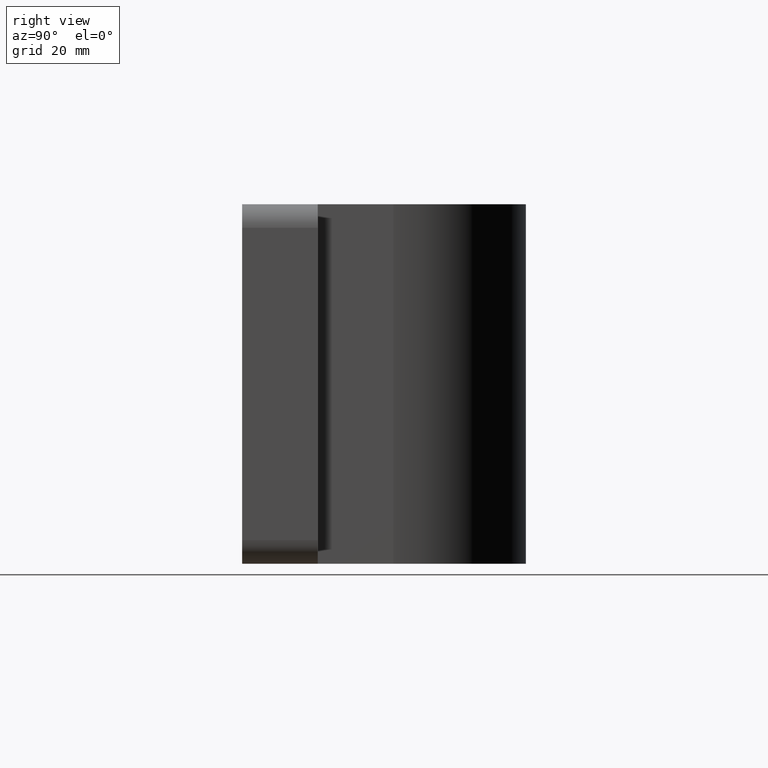
[diagram: clean part render]
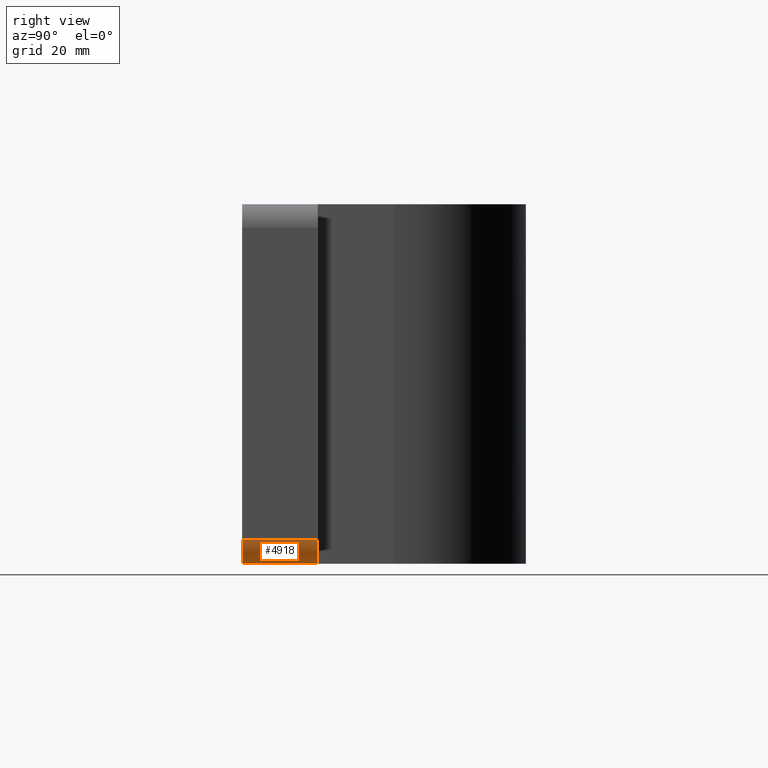
[diagram: same view with one face highlighted and labeled with its STEP entity id]
A machine part, right view. The second image highlights one B-rep face of the part: STEP entity #4918.
In plain terms, the highlighted cylindrical surface (edge-blend (fillet) strip) has radius 5 mm, axis along (0, 1, -0).
Its self-contained STEP definition (entity closure, byte-faithful):
#151 = CIRCLE ( 'NONE', #7488, 5.000000000000000000 ) ;
#208 = CARTESIAN_POINT ( 'NONE',  ( 11.23092376484898700, -18.95986378845479700, -38.00000000000000000 ) ) ;
#250 = VECTOR ( 'NONE', #5026, 1000.000000000000000 ) ;
#303 = ORIENTED_EDGE ( 'NONE', *, *, #7369, .F. ) ;
#498 = DIRECTION ( 'NONE',  ( -0.0000000000000000000, -1.000000000000000000, 0.0000000000000000000 ) ) ;
#541 = CARTESIAN_POINT ( 'NONE',  ( 11.23092376484898700, 13.04013621154520000, -38.00000000000000000 ) ) ;
#703 = LINE ( 'NONE', #4998, #250 ) ;
#754 = DIRECTION ( 'NONE',  ( 0.0000000000000000000, 1.000000000000000000, -0.0000000000000000000 ) ) ;
#1510 = DIRECTION ( 'NONE',  ( -1.000000000000000000, 1.387778780781445700E-015, 1.387778780781445700E-015 ) ) ;
#2048 = DIRECTION ( 'NONE',  ( -1.291895883200182400E-015, -1.000000000000000000, 0.0000000000000000000 ) ) ;
#2191 = EDGE_CURVE ( 'NONE', #6958, #4259, #6174, .T. ) ;
#2904 = DIRECTION ( 'NONE',  ( -0.0000000000000000000, 1.000000000000000000, -0.0000000000000000000 ) ) ;
#3588 = DIRECTION ( 'NONE',  ( 0.0000000000000000000, 0.0000000000000000000, -1.000000000000000000 ) ) ;
#3786 = CARTESIAN_POINT ( 'NONE',  ( 16.23092376484898500, -2.959863788454801400, -33.00000000000000700 ) ) ;
#4259 = VERTEX_POINT ( 'NONE', #7485 ) ;
#4304 = EDGE_CURVE ( 'NONE', #8047, #6958, #703, .T. ) ;
#4432 = CYLINDRICAL_SURFACE ( 'NONE', #7206, 5.000000000000000900 ) ;
#4436 = LINE ( 'NONE', #541, #6917 ) ;
#4845 = CARTESIAN_POINT ( 'NONE',  ( 11.23092376484898700, -18.95986378845479300, -33.00000000000000700 ) ) ;
#4918 = ADVANCED_FACE ( 'NONE', ( #5221 ), #4432, .T. ) ;
#4998 = CARTESIAN_POINT ( 'NONE',  ( 16.23092376484898500, -2.959863788454801400, -33.00000000000000700 ) ) ;
#5026 = DIRECTION ( 'NONE',  ( 0.0000000000000000000, 1.000000000000000000, -0.0000000000000000000 ) ) ;
#5089 = CARTESIAN_POINT ( 'NONE',  ( 11.23092376484898700, -2.959863788454801400, -33.00000000000000700 ) ) ;
#5221 = FACE_OUTER_BOUND ( 'NONE', #8152, .T. ) ;
#6157 = ORIENTED_EDGE ( 'NONE', *, *, #2191, .F. ) ;
#6174 = CIRCLE ( 'NONE', #6251, 4.999999999999997300 ) ;
#6251 = AXIS2_PLACEMENT_3D ( 'NONE', #5089, #2904, #3588 ) ;
#6359 = CARTESIAN_POINT ( 'NONE',  ( 11.23092376484898700, -2.959863788454801400, -33.00000000000000700 ) ) ;
#6668 = ORIENTED_EDGE ( 'NONE', *, *, #7646, .F. ) ;
#6917 = VECTOR ( 'NONE', #498, 1000.000000000000000 ) ;
#6958 = VERTEX_POINT ( 'NONE', #3786 ) ;
#7119 = DIRECTION ( 'NONE',  ( 0.0000000000000000000, 0.0000000000000000000, 1.000000000000000000 ) ) ;
#7206 = AXIS2_PLACEMENT_3D ( 'NONE', #6359, #754, #7119 ) ;
#7369 = EDGE_CURVE ( 'NONE', #8008, #8047, #151, .T. ) ;
#7485 = CARTESIAN_POINT ( 'NONE',  ( 11.23092376484898700, -2.959863788454801400, -38.00000000000000000 ) ) ;
#7488 = AXIS2_PLACEMENT_3D ( 'NONE', #4845, #2048, #1510 ) ;
#7646 = EDGE_CURVE ( 'NONE', #4259, #8008, #4436, .T. ) ;
#8006 = CARTESIAN_POINT ( 'NONE',  ( 16.23092376484898500, -18.95986378845480000, -33.00000000000000700 ) ) ;
#8008 = VERTEX_POINT ( 'NONE', #208 ) ;
#8047 = VERTEX_POINT ( 'NONE', #8006 ) ;
#8152 = EDGE_LOOP ( 'NONE', ( #303, #6668, #6157, #9059 ) ) ;
#9059 = ORIENTED_EDGE ( 'NONE', *, *, #4304, .F. ) ;